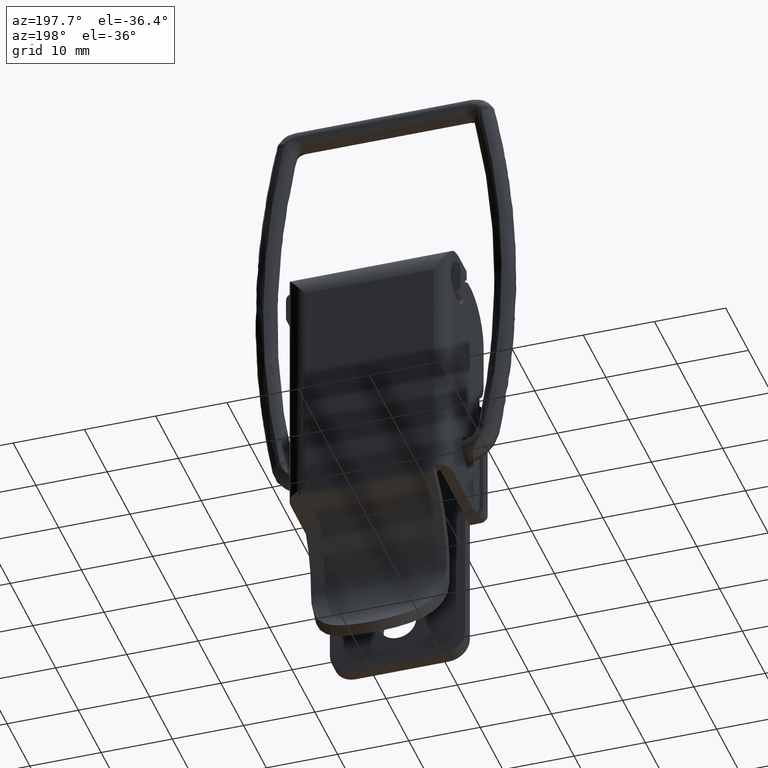
[diagram: clean part render]
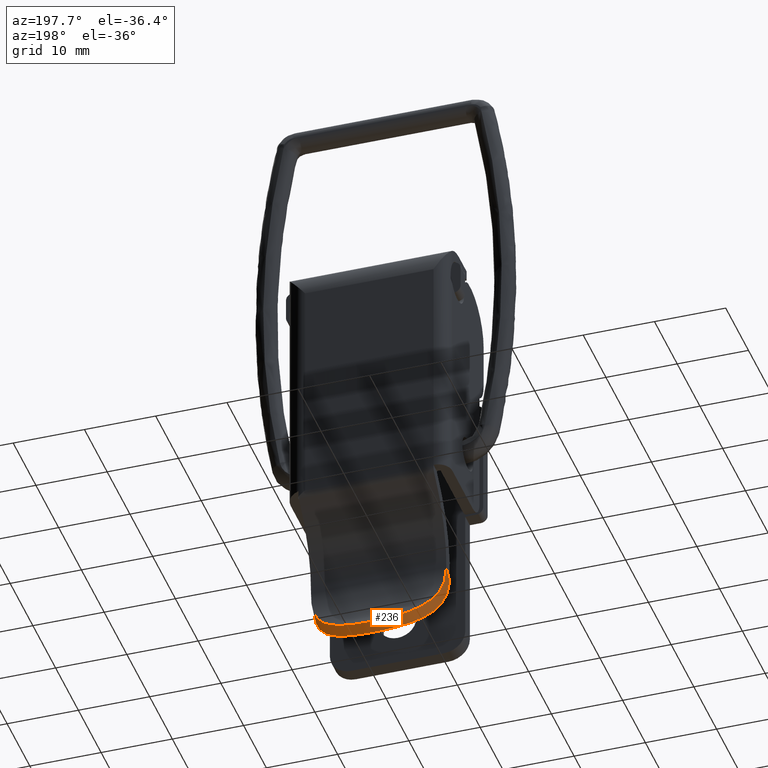
[diagram: same view with one face highlighted and labeled with its STEP entity id]
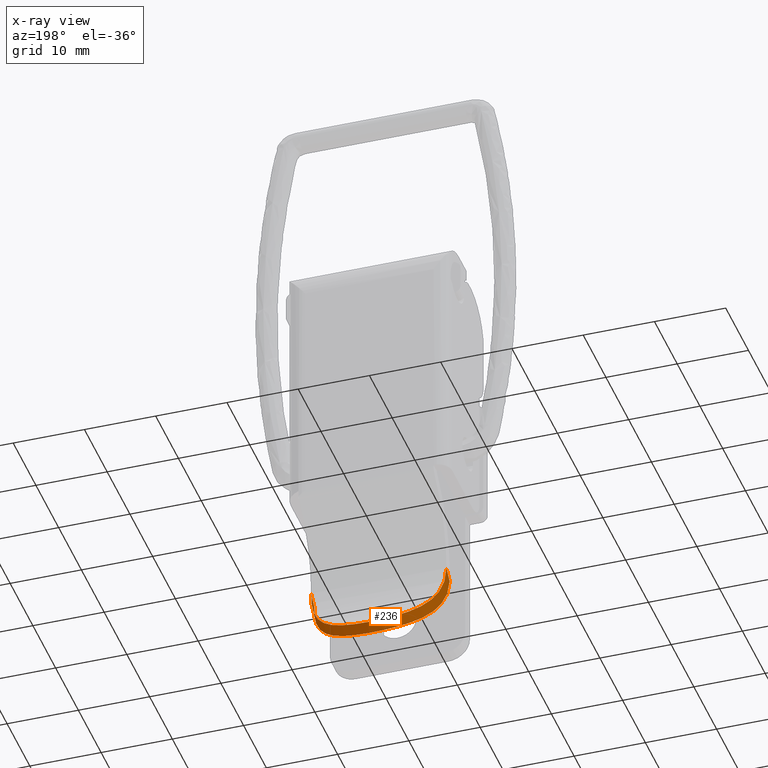
[diagram: x-ray of the same camera — body ghosted, the highlighted face saturated]
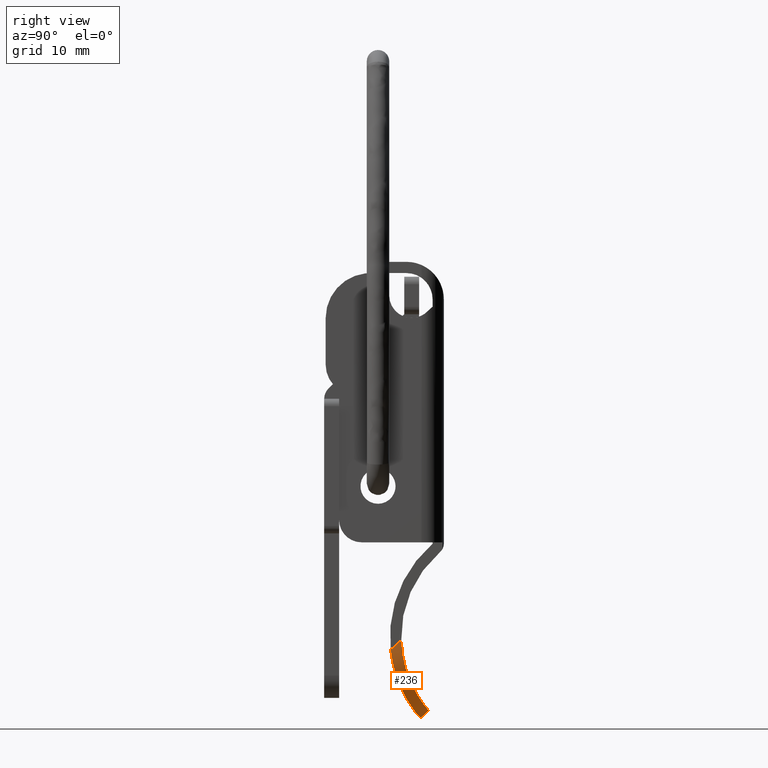
[diagram: same view with one face highlighted and labeled with its STEP entity id]
A machine part, auxiliary view. The second image highlights one B-rep face of the part: STEP entity #236.
The next image is the same camera in x-ray: the body ghosted, the highlighted face saturated — about 0% of this face is hidden behind the body in this view.
A second angle (right view) of the same face is appended — the face is thin or edge-on in the first view.
In plain terms, the highlighted cylindrical surface (partial cylindrical patch) has radius 9.5 mm, axis along (-0, -0.7533, -0.6576).
Its self-contained STEP definition (entity closure, byte-faithful):
#236=ADVANCED_FACE('',(#1148),#1147,.T.);
#1147=CYLINDRICAL_SURFACE('',#2185,9.50000000000E+00);
#1148=FACE_OUTER_BOUND('',#2186,.T.);
#2182=CARTESIAN_POINT('',(-1.51408437300E+05,1.15000000000E+01,-1.32198658933E+05));
#2183=DIRECTION('',(-7.53333333345E-01,0.00000000000E+00,-6.57638874210E-01));
#2184=DIRECTION('',(-6.57638874210E-01,-0.00000000000E+00,7.53333333345E-01));
#2185=AXIS2_PLACEMENT_3D('',#2182,#2183,#2184);
#2186=EDGE_LOOP('',(#2825,#2826,#2827,#2828));
#2825=ORIENTED_EDGE('',*,*,#3265,.F.);
#2826=ORIENTED_EDGE('',*,*,#3266,.T.);
#2827=ORIENTED_EDGE('',*,*,#3267,.T.);
#2828=ORIENTED_EDGE('',*,*,#3268,.F.);
#3265=EDGE_CURVE('',#5093,#5094,#5095,.T.);
#3266=EDGE_CURVE('',#5093,#5101,#5102,.T.);
#3267=EDGE_CURVE('',#5101,#5108,#5109,.T.);
#3268=EDGE_CURVE('',#5094,#5108,#5115,.T.);
#5093=VERTEX_POINT('',#6692);
#5094=VERTEX_POINT('',#6693);
#5095=(BOUNDED_CURVE() B_SPLINE_CURVE(3,(#6694,#6695,#6696,#6697,#6698,#6699,#6700,#6701,#6702,#6703,#6704,#6705,#6706,#6707,#6708,#6709,#6710,#6711,#6712,#6713,#6714,#6715,#6716,#6717,#6718,#6719,#6720,#6721,#6722,#6723,#6724,#6725,#6726,#6727,#6728,#6729,#6730,#6731,#6732,#6733,#6734,#6735,#6736,#6737,#6738,#6739,#6740,#6741),.UNSPECIFIED.,.F.,.F.) B_SPLINE_CURVE_WITH_KNOTS((4,2,2,2,2,2,2,2,2,2,2,2,2,2,2,2,2,2,2,2,2,2,2,4),(-1.54405410577E-02,-1.35105780150E-02,-1.25455964937E-02,-1.15806149724E-02,-9.65065192973E-03,-8.68567040841E-03,-7.72068888708E-03,-6.75570736576E-03,-5.79072584444E-03,-3.86076280179E-03,-2.89578128046E-03,-1.93079975914E-03,-8.36716491743E-07,1.92912632616E-03,2.89410784748E-03,3.85908936880E-03,5.78905241145E-03,6.75403393278E-03,7.71901545410E-03,8.68399697542E-03,9.64897849675E-03,1.15789415394E-02,1.35089045820E-02,1.54388676247E-02),.UNSPECIFIED.) CURVE() GEOMETRIC_REPRESENTATION_ITEM() RATIONAL_B_SPLINE_CURVE((1.00000000000E+00,1.00000000000E+00,1.00000000000E+00,1.00000000000E+00,1.00000000000E+00,1.00000000000E+00,1.00000000000E+00,1.00000000000E+00,1.00000000000E+00,1.00000000000E+00,1.00000000000E+00,1.00000000000E+00,1.00000000000E+00,1.00000000000E+00,1.00000000000E+00,1.00000000000E+00,1.00000000000E+00,1.00000000000E+00,1.00000000000E+00,1.00000000000E+00,1.00000000000E+00,1.00000000000E+00,1.00000000000E+00,1.00000000000E+00,1.00000000000E+00,1.00000000000E+00,1.00000000000E+00,1.00000000000E+00,1.00000000000E+00,1.00000000000E+00,1.00000000000E+00,1.00000000000E+00,1.00000000000E+00,1.00000000000E+00,1.00000000000E+00,1.00000000000E+00,1.00000000000E+00,1.00000000000E+00,1.00000000000E+00,1.00000000000E+00,1.00000000000E+00,1.00000000000E+00,1.00000000000E+00,1.00000000000E+00,1.00000000000E+00,1.00000000000E+00,1.00000000000E+00,1.00000000000E+00)) REPRESENTATION_ITEM('') );
#5101=VERTEX_POINT('',#6742);
#5102=LINE('',#6743,#6744);
#5108=VERTEX_POINT('',#6746);
#5109=(BOUNDED_CURVE() B_SPLINE_CURVE(3,(#6747,#6748,#6749,#6750,#6751,#6752,#6753,#6754,#6755,#6756,#6757,#6758,#6759,#6760,#6761,#6762,#6763,#6764,#6765,#6766,#6767,#6768,#6769,#6770,#6771,#6772,#6773,#6774,#6775,#6776,#6777,#6778,#6779,#6780,#6781,#6782,#6783,#6784,#6785,#6786,#6787,#6788,#6789,#6790,#6791,#6792,#6793,#6794,#6795,#6796,#6797,#6798),.UNSPECIFIED.,.F.,.F.) B_SPLINE_CURVE_WITH_KNOTS((4,2,2,2,2,2,2,2,2,2,2,2,2,2,2,2,2,2,2,2,2,2,2,2,2,4),(-1.55921277857E-02,-1.36426121706E-02,-1.26678543631E-02,-1.16930965556E-02,-9.74358094052E-03,-8.76882313299E-03,-7.79406532545E-03,-6.81930751792E-03,-5.84454971039E-03,-3.89503409532E-03,-2.92027628779E-03,-1.94551848026E-03,-9.70760672722E-04,3.99713481072E-06,1.95351274988E-03,2.92827055741E-03,3.90302836494E-03,5.85254398001E-03,6.82730178754E-03,7.80205959507E-03,8.77681740261E-03,9.75157521014E-03,1.17010908252E-02,1.26758486327E-02,1.36506064403E-02,1.56001220553E-02),.UNSPECIFIED.) CURVE() GEOMETRIC_REPRESENTATION_ITEM() RATIONAL_B_SPLINE_CURVE((1.00000000000E+00,1.00000000000E+00,1.00000000000E+00,1.00000000000E+00,1.00000000000E+00,1.00000000000E+00,1.00000000000E+00,1.00000000000E+00,1.00000000000E+00,1.00000000000E+00,1.00000000000E+00,1.00000000000E+00,1.00000000000E+00,1.00000000000E+00,1.00000000000E+00,1.00000000000E+00,1.00000000000E+00,1.00000000000E+00,1.00000000000E+00,1.00000000000E+00,1.00000000000E+00,1.00000000000E+00,1.00000000000E+00,1.00000000000E+00,1.00000000000E+00,1.00000000000E+00,1.00000000000E+00,1.00000000000E+00,1.00000000000E+00,1.00000000000E+00,1.00000000000E+00,1.00000000000E+00,1.00000000000E+00,1.00000000000E+00,1.00000000000E+00,1.00000000000E+00,1.00000000000E+00,1.00000000000E+00,1.00000000000E+00,1.00000000000E+00,1.00000000000E+00,1.00000000000E+00,1.00000000000E+00,1.00000000000E+00,1.00000000000E+00,1.00000000000E+00,1.00000000000E+00,1.00000000000E+00,1.00000000000E+00,1.00000000000E+00,1.00000000000E+00,1.00000000000E+00)) REPRESENTATION_ITEM('') );
#5115=LINE('',#6799,#6800);
#6692=CARTESIAN_POINT('',(1.68940839720E+00,2.10000000000E+01,-2.18643253723E+01));
#6693=CARTESIAN_POINT('',(1.68940839720E+00,2.00000000001E+00,-2.18643253723E+01));
#6694=CARTESIAN_POINT('',(1.68940839720E+00,2.10000000000E+01,-2.18643253722E+01));
#6695=CARTESIAN_POINT('',(1.75716645364E+00,2.10000000000E+01,-2.25125539575E+01));
#6696=CARTESIAN_POINT('',(1.86226601732E+00,2.09554618024E+01,-2.31474892462E+01));
#6697=CARTESIAN_POINT('',(2.07172282072E+00,2.08083234929E+01,-2.40790512502E+01));
#6698=CARTESIAN_POINT('',(2.15019349168E+00,2.07458357368E+01,-2.43860880939E+01));
#6699=CARTESIAN_POINT('',(2.32388145436E+00,2.05907620174E+01,-2.49928906396E+01));
#6700=CARTESIAN_POINT('',(2.41896110048E+00,2.04981636738E+01,-2.52917057179E+01));
#6701=CARTESIAN_POINT('',(2.71978715144E+00,2.01791935945E+01,-2.61548198205E+01));
#6702=CARTESIAN_POINT('',(2.94318969359E+00,1.99102242437E+01,-2.66934324263E+01));
#6703=CARTESIAN_POINT('',(3.29933289131E+00,1.94140392941E+01,-2.74474181594E+01));
#6704=CARTESIAN_POINT('',(3.42228586630E+00,1.92318546806E+01,-2.76909838685E+01));
#6705=CARTESIAN_POINT('',(3.66689935442E+00,1.88437012894E+01,-2.81491487898E+01));
#6706=CARTESIAN_POINT('',(3.78900180104E+00,1.86372574390E+01,-2.83648689028E+01));
#6707=CARTESIAN_POINT('',(4.03017776945E+00,1.81998524936E+01,-2.87713685841E+01));
#6708=CARTESIAN_POINT('',(4.14925710478E+00,1.79688927252E+01,-2.89621461655E+01));
#6709=CARTESIAN_POINT('',(4.38175742199E+00,1.74820343524E+01,-2.93198540277E+01));
#6710=CARTESIAN_POINT('',(4.49574352563E+00,1.72246217636E+01,-2.94875456835E+01));
#6711=CARTESIAN_POINT('',(4.81861743392E+00,1.64297598510E+01,-2.99466568115E+01));
#6712=CARTESIAN_POINT('',(5.00995454652E+00,1.58677804383E+01,-3.01971873763E+01));
#6713=CARTESIAN_POINT('',(5.24968731084E+00,1.49773280234E+01,-3.04996112984E+01));
#6714=CARTESIAN_POINT('',(5.32202692889E+00,1.46707338367E+01,-3.05884491593E+01));
#6715=CARTESIAN_POINT('',(5.44664050358E+00,1.40518599870E+01,-3.07391452080E+01));
#6716=CARTESIAN_POINT('',(5.49906859827E+00,1.37395811096E+01,-3.08012248178E+01));
#6717=CARTESIAN_POINT('',(5.62589345820E+00,1.27944422594E+01,-3.09500538508E+01));
#6718=CARTESIAN_POINT('',(5.66996163921E+00,1.21533685884E+01,-3.09999560572E+01));
#6719=CARTESIAN_POINT('',(5.67003831095E+00,1.08483287861E+01,-3.10000438856E+01));
#6720=CARTESIAN_POINT('',(5.62604183646E+00,1.02070624469E+01,-3.09502249496E+01));
#6721=CARTESIAN_POINT('',(5.49923568475E+00,9.26146516776E+00,-3.08014224011E+01));
#6722=CARTESIAN_POINT('',(5.44679918374E+00,8.94899994305E+00,-3.07393352151E+01));
#6723=CARTESIAN_POINT('',(5.32212635712E+00,8.32968823682E+00,-3.05885712806E+01));
#6724=CARTESIAN_POINT('',(5.24984273492E+00,8.02333381691E+00,-3.04998018894E+01));
#6725=CARTESIAN_POINT('',(5.01045683350E+00,7.13391658317E+00,-3.01978319398E+01));
#6726=CARTESIAN_POINT('',(4.81953650591E+00,6.57295649897E+00,-2.99478540642E+01));
#6727=CARTESIAN_POINT('',(4.49768294158E+00,5.77992840871E+00,-2.94903576406E+01));
#6728=CARTESIAN_POINT('',(4.38372963055E+00,5.52228983277E+00,-2.93228083921E+01));
#6729=CARTESIAN_POINT('',(4.15092579561E+00,5.03441019065E+00,-2.89647921802E+01));
#6730=CARTESIAN_POINT('',(4.03187537448E+00,4.80338765171E+00,-2.87741231944E+01));
#6731=CARTESIAN_POINT('',(3.79116155155E+00,4.36650081090E+00,-2.83686141303E+01));
#6732=CARTESIAN_POINT('',(3.66949235812E+00,4.16063894300E+00,-2.81537748902E+01));
#6733=CARTESIAN_POINT('',(3.42614986740E+00,3.77405698874E+00,-2.76984457979E+01));
#6734=CARTESIAN_POINT('',(3.30390487575E+00,3.59255776626E+00,-2.74567485540E+01));
#6735=CARTESIAN_POINT('',(2.94514379184E+00,3.09205404227E+00,-2.66982512471E+01));
#6736=CARTESIAN_POINT('',(2.72104358337E+00,2.82227443684E+00,-2.61579962160E+01));
#6737=CARTESIAN_POINT('',(2.31993749912E+00,2.39670524121E+00,-2.50080182889E+01));
#6738=CARTESIAN_POINT('',(2.14246505133E+00,2.24144623790E+00,-2.43932525551E+01));
#6739=CARTESIAN_POINT('',(1.86240087640E+00,2.04455818133E+00,-2.31485131632E+01));
#6740=CARTESIAN_POINT('',(1.75719093171E+00,2.00000000001E+00,-2.25127881343E+01));
#6741=CARTESIAN_POINT('',(1.68940839723E+00,2.00000000001E+00,-2.18643253722E+01));
#6742=CARTESIAN_POINT('',(3.10759666425E+00,2.10000000000E+01,-2.06262867855E+01));
#6743=CARTESIAN_POINT('',(1.68940839719E+00,2.10000000000E+01,-2.18643253723E+01));
#6744=VECTOR('',#6745,1.88255079695E+00);
#6745=DIRECTION('',(7.53333333348E-01,0.00000000000E+00,6.57638874205E-01));
#6746=CARTESIAN_POINT('',(3.10759666428E+00,2.00000000001E+00,-2.06262867855E+01));
#6747=CARTESIAN_POINT('',(3.10759666427E+00,2.10000000000E+01,-2.06262867855E+01));
#6748=CARTESIAN_POINT('',(3.12854353023E+00,2.10000000000E+01,-2.12842069675E+01));
#6749=CARTESIAN_POINT('',(3.19236656743E+00,2.09593055847E+01,-2.19314446915E+01));
#6750=CARTESIAN_POINT('',(3.34810293769E+00,2.08203399248E+01,-2.28848735762E+01));
#6751=CARTESIAN_POINT('',(3.41004046075E+00,2.07609817851E+01,-2.31997693696E+01));
#6752=CARTESIAN_POINT('',(3.55348190041E+00,2.06124066689E+01,-2.38233522594E+01));
#6753=CARTESIAN_POINT('',(3.63475704068E+00,2.05233330027E+01,-2.41304448822E+01));
#6754=CARTESIAN_POINT('',(3.89912512308E+00,2.02144591042E+01,-2.50189792184E+01));
#6755=CARTESIAN_POINT('',(4.10438025098E+00,1.99517061624E+01,-2.55751455502E+01));
#6756=CARTESIAN_POINT('',(4.44121099952E+00,1.94614027421E+01,-2.63552217305E+01));
#6757=CARTESIAN_POINT('',(4.55889423394E+00,1.92807942798E+01,-2.66071583680E+01));
#6758=CARTESIAN_POINT('',(4.79487794555E+00,1.88954005590E+01,-2.70803088800E+01));
#6759=CARTESIAN_POINT('',(4.91380065573E+00,1.86898085142E+01,-2.73031341549E+01));
#6760=CARTESIAN_POINT('',(5.15043556898E+00,1.82528963121E+01,-2.77230500996E+01));
#6761=CARTESIAN_POINT('',(5.26815481447E+00,1.80215784311E+01,-2.79201392050E+01));
#6762=CARTESIAN_POINT('',(5.49934729108E+00,1.75326279437E+01,-2.82896618959E+01));
#6763=CARTESIAN_POINT('',(5.61309040809E+00,1.72740892369E+01,-2.84624046827E+01));
#6764=CARTESIAN_POINT('',(5.93585477886E+00,1.64764893261E+01,-2.89341028760E+01));
#6765=CARTESIAN_POINT('',(6.12914395932E+00,1.59105504808E+01,-2.91915157264E+01));
#6766=CARTESIAN_POINT('',(6.37252562535E+00,1.50104498089E+01,-2.95022282355E+01));
#6767=CARTESIAN_POINT('',(6.44594534544E+00,1.47009265104E+01,-2.95931581199E+01));
#6768=CARTESIAN_POINT('',(6.57222419573E+00,1.40781117367E+01,-2.97468895990E+01));
#6769=CARTESIAN_POINT('',(6.62556850053E+00,1.37632603152E+01,-2.98103173587E+01));
#6770=CARTESIAN_POINT('',(6.71177509205E+00,1.31267876011E+01,-2.99117842535E+01));
#6771=CARTESIAN_POINT('',(6.74463923348E+00,1.28051662918E+01,-2.99498217328E+01));
#6772=CARTESIAN_POINT('',(6.78881323708E+00,1.21550528237E+01,-3.00007701237E+01));
#6773=CARTESIAN_POINT('',(6.80009191615E+00,1.18254867106E+01,-3.00136469797E+01));
#6774=CARTESIAN_POINT('',(6.79981446106E+00,1.08368641712E+01,-3.00133291515E+01));
#6775=CARTESIAN_POINT('',(6.75468445072E+00,1.01892924912E+01,-2.99622957161E+01));
#6776=CARTESIAN_POINT('',(6.62522014090E+00,9.23453178363E+00,-2.98099041746E+01));
#6777=CARTESIAN_POINT('',(6.57174206886E+00,8.91906702144E+00,-2.97463160332E+01));
#6778=CARTESIAN_POINT('',(6.44480074028E+00,8.29387731505E+00,-2.95917511346E+01));
#6779=CARTESIAN_POINT('',(6.37140959641E+00,7.98517185687E+00,-2.95008223164E+01));
#6780=CARTESIAN_POINT('',(6.12890249589E+00,7.08906220106E+00,-2.91911694607E+01));
#6781=CARTESIAN_POINT('',(5.93613185266E+00,6.52428714008E+00,-2.89344812289E+01));
#6782=CARTESIAN_POINT('',(5.61345202186E+00,5.72675858520E+00,-2.84629464115E+01));
#6783=CARTESIAN_POINT('',(5.49964319823E+00,5.46804431224E+00,-2.82901113472E+01));
#6784=CARTESIAN_POINT('',(5.26876877815E+00,4.97967378739E+00,-2.79211439384E+01));
#6785=CARTESIAN_POINT('',(5.15126601745E+00,4.74872405469E+00,-2.77244502375E+01));
#6786=CARTESIAN_POINT('',(4.91517164161E+00,4.31263655773E+00,-2.73056398477E+01));
#6787=CARTESIAN_POINT('',(4.79657309002E+00,4.10750136042E+00,-2.70835243729E+01));
#6788=CARTESIAN_POINT('',(4.56132306508E+00,3.72304113758E+00,-2.66122083154E+01));
#6789=CARTESIAN_POINT('',(4.44391234216E+00,3.54265004991E+00,-2.63612107821E+01));
#6790=CARTESIAN_POINT('',(4.10556002347E+00,3.04977341050E+00,-2.55784042319E+01));
#6791=CARTESIAN_POINT('',(3.89966059133E+00,2.78618284287E+00,-2.50206850780E+01));
#6792=CARTESIAN_POINT('',(3.63476649929E+00,2.47666989409E+00,-2.41305235164E+01));
#6793=CARTESIAN_POINT('',(3.55337778594E+00,2.38748251056E+00,-2.38229278117E+01));
#6794=CARTESIAN_POINT('',(3.41001172102E+00,2.23899142924E+00,-2.31996162342E+01));
#6795=CARTESIAN_POINT('',(3.34809466059E+00,2.17965280761E+00,-2.28848210595E+01));
#6796=CARTESIAN_POINT('',(3.19238981876E+00,2.04071492648E+00,-2.19315907252E+01));
#6797=CARTESIAN_POINT('',(3.12854801633E+00,2.00000000001E+00,-2.12843478713E+01));
#6798=CARTESIAN_POINT('',(3.10759666428E+00,2.00000000001E+00,-2.06262867855E+01));
#6799=CARTESIAN_POINT('',(1.68940839719E+00,2.00000000001E+00,-2.18643253723E+01));
#6800=VECTOR('',#6801,1.88255079695E+00);
#6801=DIRECTION('',(7.53333333348E-01,0.00000000000E+00,6.57638874205E-01));